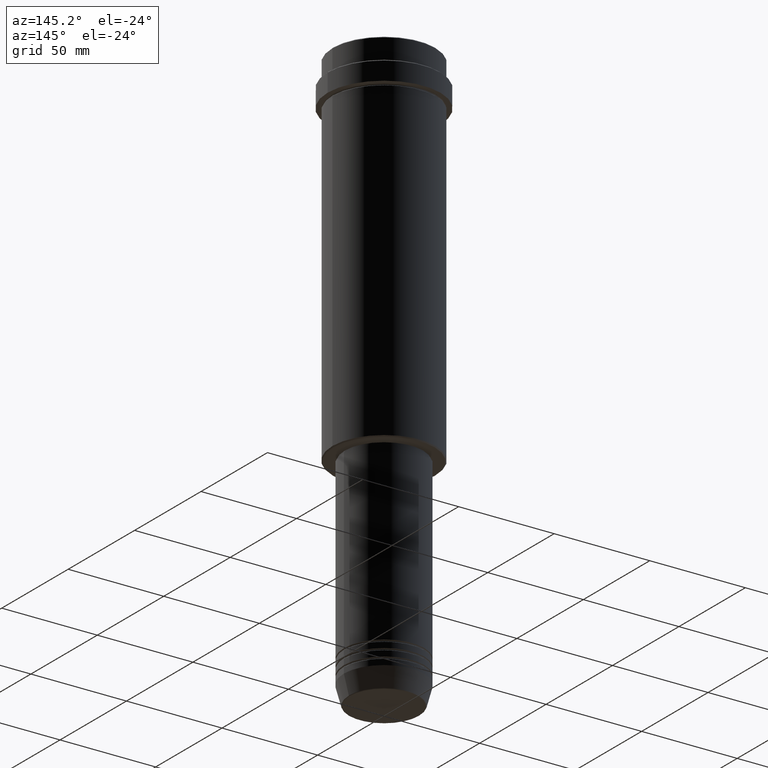
[diagram: clean part render]
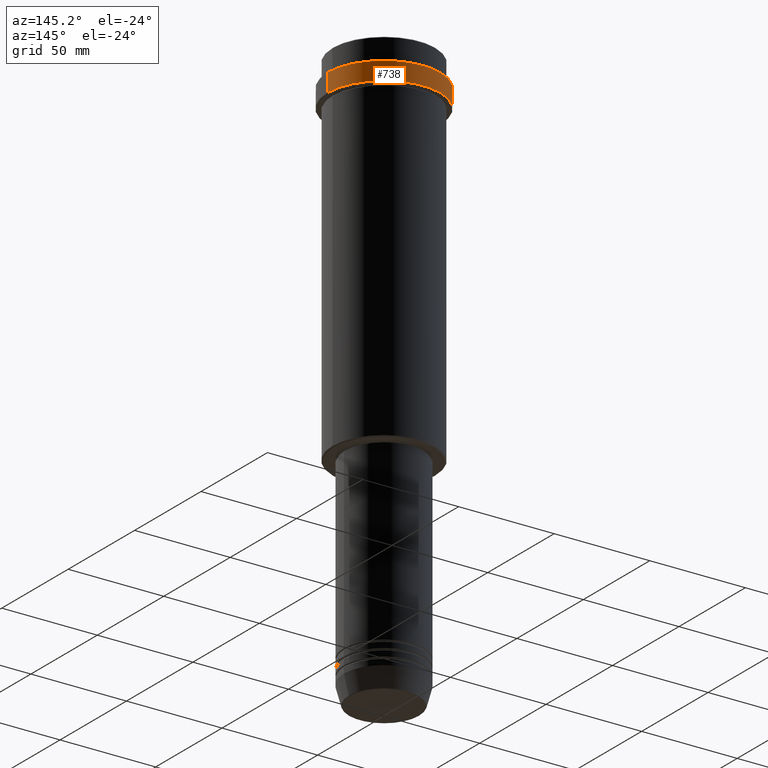
[diagram: same view with one face highlighted and labeled with its STEP entity id]
A machine part, auxiliary view. The second image highlights one B-rep face of the part: STEP entity #738.
In plain terms, the highlighted cylindrical surface (partial cylindrical patch) has radius 29.5 mm, axis along (-0, -0, 1).
Its self-contained STEP definition (entity closure, byte-faithful):
#70 = CARTESIAN_POINT ( 'NONE',  ( 29.50000000000000000, 0.000000000000000000, -12.49999999999994849 ) ) ;
#80 = CARTESIAN_POINT ( 'NONE',  ( 0.000000000000000000, 0.000000000000000000, -22.00000000000000711 ) ) ;
#91 = EDGE_CURVE ( 'NONE', #479, #336, #198, .T. ) ;
#96 = CIRCLE ( 'NONE', #930, 29.50000000000000000 ) ;
#107 = LINE ( 'NONE', #544, #361 ) ;
#111 = ORIENTED_EDGE ( 'NONE', *, *, #974, .T. ) ;
#156 = FACE_OUTER_BOUND ( 'NONE', #637, .T. ) ;
#198 = CIRCLE ( 'NONE', #552, 29.49999999999999645 ) ;
#210 = DIRECTION ( 'NONE',  ( -0.000000000000000000, -0.000000000000000000, 1.000000000000000000 ) ) ;
#336 = VERTEX_POINT ( 'NONE', #1146 ) ;
#349 = CYLINDRICAL_SURFACE ( 'NONE', #1396, 29.50000000000000000 ) ;
#361 = VECTOR ( 'NONE', #445, 1000.000000000000000 ) ;
#445 = DIRECTION ( 'NONE',  ( -0.000000000000000000, -0.000000000000000000, 1.000000000000000000 ) ) ;
#449 = DIRECTION ( 'NONE',  ( 0.000000000000000000, 0.000000000000000000, -1.000000000000000000 ) ) ;
#479 = VERTEX_POINT ( 'NONE', #1116 ) ;
#484 = CARTESIAN_POINT ( 'NONE',  ( -29.50000000000000000, 3.612708057484691604E-15, 0.000000000000000000 ) ) ;
#500 = DIRECTION ( 'NONE',  ( 1.000000000000000000, 0.000000000000000000, 0.000000000000000000 ) ) ;
#503 = EDGE_CURVE ( 'NONE', #1203, #1208, #96, .T. ) ;
#544 = CARTESIAN_POINT ( 'NONE',  ( 29.50000000000000000, 0.000000000000000000, 0.000000000000000000 ) ) ;
#548 = CARTESIAN_POINT ( 'NONE',  ( 0.000000000000000000, 0.000000000000000000, -12.49999999999994849 ) ) ;
#552 = AXIS2_PLACEMENT_3D ( 'NONE', #80, #843, #500 ) ;
#637 = EDGE_LOOP ( 'NONE', ( #864, #111, #805, #657 ) ) ;
#657 = ORIENTED_EDGE ( 'NONE', *, *, #1363, .F. ) ;
#720 = LINE ( 'NONE', #484, #1127 ) ;
#738 = ADVANCED_FACE ( 'NONE', ( #156 ), #349, .T. ) ;
#797 = CARTESIAN_POINT ( 'NONE',  ( 0.000000000000000000, 0.000000000000000000, 0.000000000000000000 ) ) ;
#805 = ORIENTED_EDGE ( 'NONE', *, *, #503, .T. ) ;
#843 = DIRECTION ( 'NONE',  ( -0.000000000000000000, -0.000000000000000000, 1.000000000000000000 ) ) ;
#864 = ORIENTED_EDGE ( 'NONE', *, *, #91, .T. ) ;
#885 = DIRECTION ( 'NONE',  ( 1.000000000000000000, 0.000000000000000000, 0.000000000000000000 ) ) ;
#930 = AXIS2_PLACEMENT_3D ( 'NONE', #548, #449, #885 ) ;
#974 = EDGE_CURVE ( 'NONE', #336, #1203, #720, .T. ) ;
#1079 = CARTESIAN_POINT ( 'NONE',  ( -29.50000000000000000, 3.612708057484691604E-15, -12.49999999999994849 ) ) ;
#1116 = CARTESIAN_POINT ( 'NONE',  ( 29.49999999999999645, 0.000000000000000000, -22.00000000000000711 ) ) ;
#1127 = VECTOR ( 'NONE', #210, 1000.000000000000000 ) ;
#1146 = CARTESIAN_POINT ( 'NONE',  ( -29.49999999999999645, 3.612708057484690815E-15, -22.00000000000000711 ) ) ;
#1203 = VERTEX_POINT ( 'NONE', #1079 ) ;
#1208 = VERTEX_POINT ( 'NONE', #70 ) ;
#1231 = DIRECTION ( 'NONE',  ( -0.000000000000000000, -0.000000000000000000, 1.000000000000000000 ) ) ;
#1332 = DIRECTION ( 'NONE',  ( 1.000000000000000000, 0.000000000000000000, 0.000000000000000000 ) ) ;
#1363 = EDGE_CURVE ( 'NONE', #479, #1208, #107, .T. ) ;
#1396 = AXIS2_PLACEMENT_3D ( 'NONE', #797, #1231, #1332 ) ;